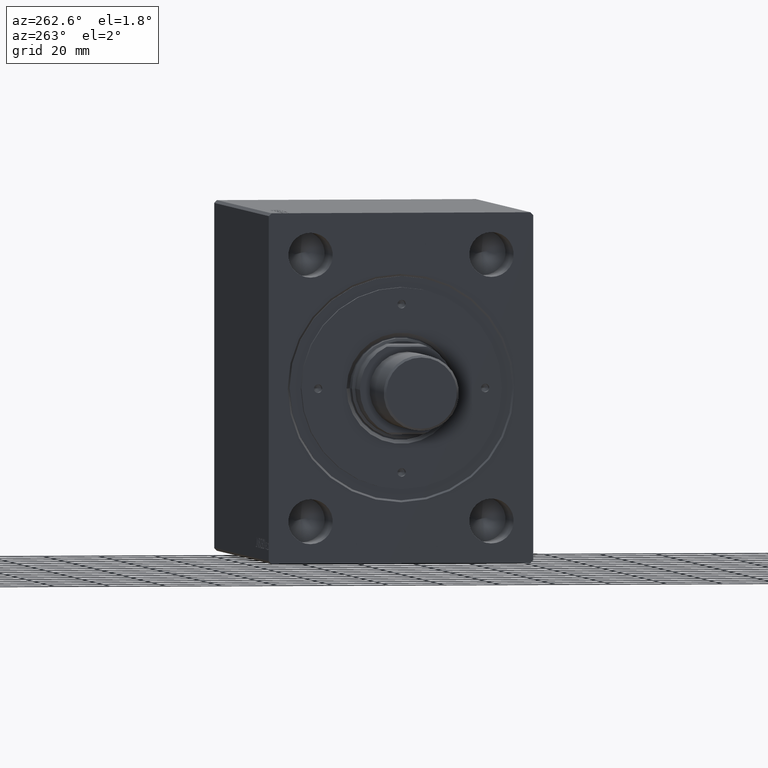
[diagram: clean part render]
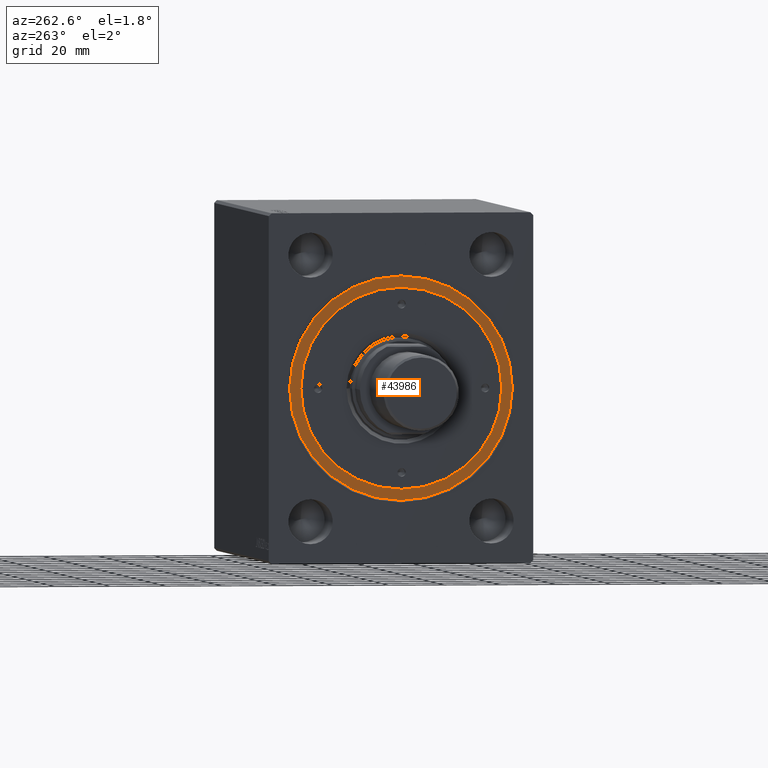
[diagram: same view with one face highlighted and labeled with its STEP entity id]
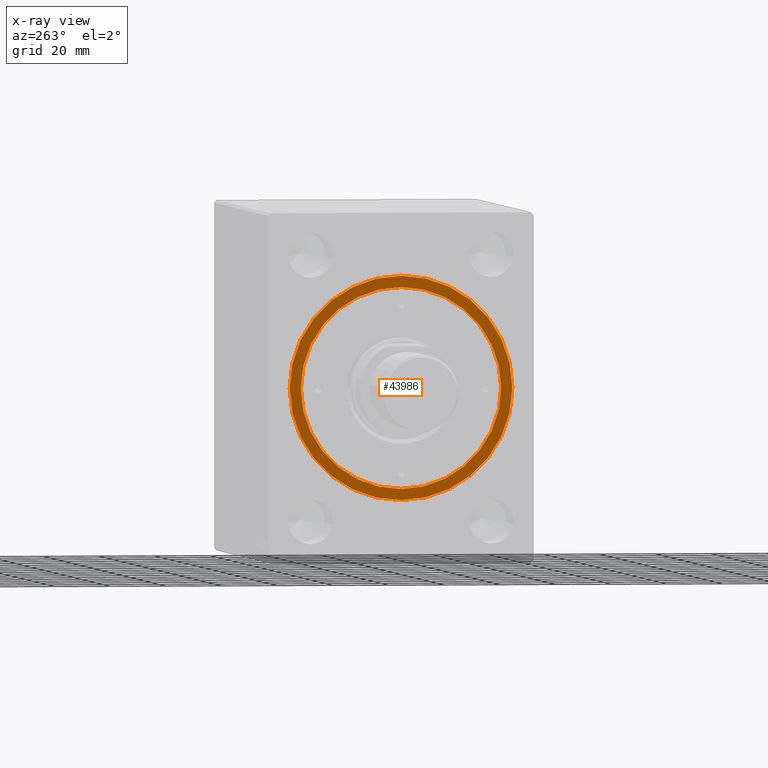
[diagram: x-ray of the same camera — body ghosted, the highlighted face saturated]
A machine part, auxiliary view. The second image highlights one B-rep face of the part: STEP entity #43986.
The next image is the same camera in x-ray: the body ghosted, the highlighted face saturated — about 0% of this face is hidden behind the body in this view.
In plain terms, the highlighted planar face has unit normal (-1, 0, 0).
Its self-contained STEP definition (entity closure, byte-faithful):
#157 = CIRCLE ( 'NONE', #33657, 40.00000000000000000 ) ;
#596 = ORIENTED_EDGE ( 'NONE', *, *, #16116, .F. ) ;
#682 = VERTEX_POINT ( 'NONE', #41844 ) ;
#1164 = DIRECTION ( 'NONE',  ( 1.000000000000000000, 0.000000000000000000, -0.000000000000000000 ) ) ;
#2691 = DIRECTION ( 'NONE',  ( 1.000000000000000000, 0.000000000000000000, 0.000000000000000000 ) ) ;
#2879 = EDGE_CURVE ( 'NONE', #14365, #682, #157, .T. ) ;
#5605 = CARTESIAN_POINT ( 'NONE',  ( 0.000000000000000000, 0.000000000000000000, 10.00000000000000000 ) ) ;
#7177 = ORIENTED_EDGE ( 'NONE', *, *, #2879, .T. ) ;
#9300 = EDGE_CURVE ( 'NONE', #31883, #33369, #38754, .T. ) ;
#9836 = CIRCLE ( 'NONE', #40499, 40.00000000000000000 ) ;
#10747 = EDGE_LOOP ( 'NONE', ( #36625, #7177 ) ) ;
#11848 = CARTESIAN_POINT ( 'NONE',  ( 0.000000000000000000, 0.000000000000000000, 10.00000000000000000 ) ) ;
#14365 = VERTEX_POINT ( 'NONE', #24575 ) ;
#15188 = DIRECTION ( 'NONE',  ( 0.000000000000000000, 0.000000000000000000, 1.000000000000000000 ) ) ;
#15232 = CARTESIAN_POINT ( 'NONE',  ( 0.000000000000000000, 0.000000000000000000, 10.00000000000000000 ) ) ;
#16116 = EDGE_CURVE ( 'NONE', #33369, #31883, #20528, .T. ) ;
#17692 = FACE_BOUND ( 'NONE', #39997, .T. ) ;
#20528 = CIRCLE ( 'NONE', #36921, 36.00000000000000000 ) ;
#21523 = DIRECTION ( 'NONE',  ( 1.000000000000000000, 0.000000000000000000, 0.000000000000000000 ) ) ;
#21593 = CARTESIAN_POINT ( 'NONE',  ( 36.00000000000000000, 4.408728476930470856E-15, 10.00000000000000000 ) ) ;
#23364 = AXIS2_PLACEMENT_3D ( 'NONE', #15232, #31975, #1164 ) ;
#24225 = DIRECTION ( 'NONE',  ( 0.000000000000000000, 0.000000000000000000, 1.000000000000000000 ) ) ;
#24575 = CARTESIAN_POINT ( 'NONE',  ( 40.00000000000000000, 4.898587196589413026E-15, 10.00000000000000000 ) ) ;
#29932 = DIRECTION ( 'NONE',  ( 0.000000000000000000, 0.000000000000000000, 1.000000000000000000 ) ) ;
#30432 = FACE_OUTER_BOUND ( 'NONE', #10747, .T. ) ;
#30944 = CARTESIAN_POINT ( 'NONE',  ( -36.00000000000000000, 0.000000000000000000, 10.00000000000000000 ) ) ;
#31155 = CARTESIAN_POINT ( 'NONE',  ( 0.000000000000000000, 0.000000000000000000, 10.00000000000000000 ) ) ;
#31322 = PLANE ( 'NONE',  #23364 ) ;
#31883 = VERTEX_POINT ( 'NONE', #21593 ) ;
#31975 = DIRECTION ( 'NONE',  ( 0.000000000000000000, 0.000000000000000000, 1.000000000000000000 ) ) ;
#33369 = VERTEX_POINT ( 'NONE', #30944 ) ;
#33657 = AXIS2_PLACEMENT_3D ( 'NONE', #31155, #24225, #21523 ) ;
#33736 = AXIS2_PLACEMENT_3D ( 'NONE', #36853, #39987, #2691 ) ;
#36625 = ORIENTED_EDGE ( 'NONE', *, *, #40643, .T. ) ;
#36853 = CARTESIAN_POINT ( 'NONE',  ( 0.000000000000000000, 0.000000000000000000, 10.00000000000000000 ) ) ;
#36921 = AXIS2_PLACEMENT_3D ( 'NONE', #11848, #15188, #38848 ) ;
#38062 = ORIENTED_EDGE ( 'NONE', *, *, #9300, .F. ) ;
#38754 = CIRCLE ( 'NONE', #33736, 36.00000000000000000 ) ;
#38848 = DIRECTION ( 'NONE',  ( 1.000000000000000000, 0.000000000000000000, 0.000000000000000000 ) ) ;
#39754 = DIRECTION ( 'NONE',  ( 1.000000000000000000, 0.000000000000000000, 0.000000000000000000 ) ) ;
#39987 = DIRECTION ( 'NONE',  ( 0.000000000000000000, 0.000000000000000000, 1.000000000000000000 ) ) ;
#39997 = EDGE_LOOP ( 'NONE', ( #596, #38062 ) ) ;
#40499 = AXIS2_PLACEMENT_3D ( 'NONE', #5605, #29932, #39754 ) ;
#40643 = EDGE_CURVE ( 'NONE', #682, #14365, #9836, .T. ) ;
#41844 = CARTESIAN_POINT ( 'NONE',  ( -40.00000000000000000, 0.000000000000000000, 10.00000000000000000 ) ) ;
#43986 = ADVANCED_FACE ( 'NONE', ( #17692, #30432 ), #31322, .T. ) ;